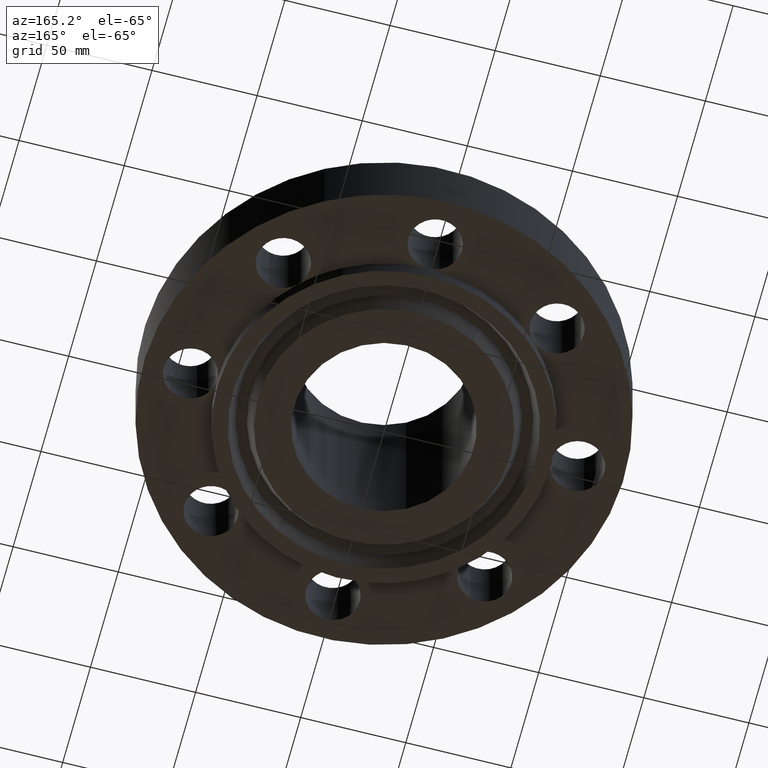
[diagram: clean part render]
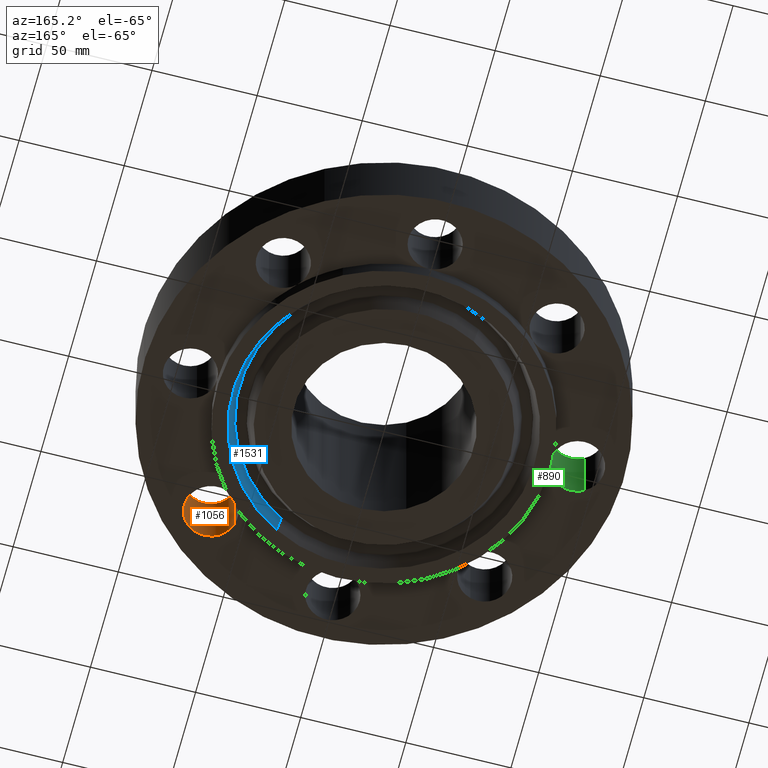
[diagram: same view with three faces highlighted in distinct colors, each labeled with its STEP entity id]
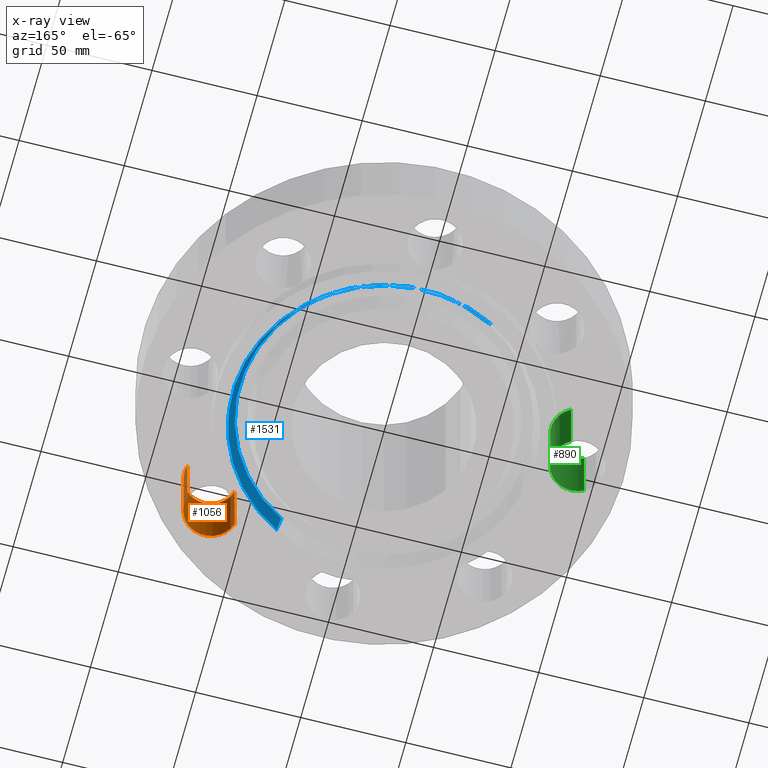
[diagram: x-ray of the same camera — body ghosted, the three highlighted faces saturated]
A machine part, auxiliary view with three faces highlighted in distinct colors.
The next image is the same camera in x-ray (body ghosted, the three faces saturated) — at least one of them is partly hidden behind the body in this view.
Their STEP definitions:

[orange] entity #1056 — the highlighted cylindrical surface (edge-blend (fillet) strip) has radius 12.7 mm, axis along (-0, 0, -1).
#347=AXIS2_PLACEMENT_3D('Circle Axis2P3D',#345,#346,$) ;
#498=AXIS2_PLACEMENT_3D('Circle Axis2P3D',#496,#497,$) ;
#1048=AXIS2_PLACEMENT_3D('Cylinder Axis2P3D',#1045,#1046,#1047) ;
#342=CARTESIAN_POINT('Vertex',(2.08348726685,-2.70403184736,0.)) ;
#345=CARTESIAN_POINT('Axis2P3D Location',(2.56326208185,-2.56326208182,0.)) ;
#349=CARTESIAN_POINT('Vertex',(3.04303689684,-2.42249231623,0.)) ;
#491=CARTESIAN_POINT('Vertex',(2.08348726682,-2.70403184738,1.37999999999)) ;
#493=CARTESIAN_POINT('Vertex',(3.0430368968,-2.42249231624,1.37999999999)) ;
#496=CARTESIAN_POINT('Axis2P3D Location',(2.56326208183,-2.56326208177,1.38000000001)) ;
#1020=CARTESIAN_POINT('Line Origine',(2.08348726682,-2.70403184738,0.690000000005)) ;
#1025=CARTESIAN_POINT('Line Origine',(3.0430368968,-2.42249231624,0.690000000005)) ;
#1045=CARTESIAN_POINT('Axis2P3D Location',(2.56326208181,-2.56326208181,1.37606299213)) ;
#346=DIRECTION('Axis2P3D Direction',(0.,0.,-0.0393700787402)) ;
#497=DIRECTION('Axis2P3D Direction',(0.,0.,-0.0393700787402)) ;
#1021=DIRECTION('Vector Direction',(0.,0.,-0.0393700787402)) ;
#1026=DIRECTION('Vector Direction',(0.,0.,-0.0393700787402)) ;
#1046=DIRECTION('Axis2P3D Direction',(-0.,0.,-0.0393700787402)) ;
#1047=DIRECTION('Axis2P3D XDirection',(0.0377775444876,0.0110842335096,0.)) ;
#1022=VECTOR('Line Direction',#1021,0.0393700787402) ;
#1027=VECTOR('Line Direction',#1026,0.0393700787402) ;
#1051=ORIENTED_EDGE('',*,*,#1029,.F.) ;
#1052=ORIENTED_EDGE('',*,*,#351,.T.) ;
#1053=ORIENTED_EDGE('',*,*,#1024,.T.) ;
#1054=ORIENTED_EDGE('',*,*,#500,.F.) ;
#1056=ADVANCED_FACE('PartBody',(#1055),#1049,.F.) ;
#348=CIRCLE('generated circle',#347,0.5) ;
#499=CIRCLE('generated circle',#498,0.5) ;
#1049=CYLINDRICAL_SURFACE('generated cylinder',#1048,0.500000000002) ;
#351=EDGE_CURVE('',#350,#343,#348,.T.) ;
#500=EDGE_CURVE('',#494,#492,#499,.T.) ;
#1024=EDGE_CURVE('',#343,#492,#1023,.F.) ;
#1029=EDGE_CURVE('',#350,#494,#1028,.F.) ;
#1050=EDGE_LOOP('',(#1051,#1052,#1053,#1054)) ;
#1055=FACE_OUTER_BOUND('',#1050,.T.) ;
#1023=LINE('Line',#1020,#1022) ;
#1028=LINE('Line',#1025,#1027) ;
#343=VERTEX_POINT('',#342) ;
#350=VERTEX_POINT('',#349) ;
#492=VERTEX_POINT('',#491) ;
#494=VERTEX_POINT('',#493) ;

[blue] entity #1531 — the highlighted conical surface has half-angle 23 deg.
#1221=AXIS2_PLACEMENT_3D('Circle Axis2P3D',#1219,#1220,$) ;
#1518=AXIS2_PLACEMENT_3D('Cone Axis2P3D',#1515,#1516,#1517) ;
#1522=AXIS2_PLACEMENT_3D('Circle Axis2P3D',#1520,#1521,$) ;
#1214=CARTESIAN_POINT('Vertex',(1.35605513595,-2.48224227628,-0.313000000001)) ;
#1216=CARTESIAN_POINT('Vertex',(-1.35605513595,2.48224227633,-0.313000000001)) ;
#1219=CARTESIAN_POINT('Axis2P3D Location',(1.39870617276E-016,2.41978965299E-011,-0.313000000001)) ;
#1482=CARTESIAN_POINT('Line Origine',(-1.32612857415,2.4274620724,-0.165943667508)) ;
#1486=CARTESIAN_POINT('Vertex',(-1.29620201235,2.37268186847,-0.0188873350156)) ;
#1493=CARTESIAN_POINT('Vertex',(1.29620201235,-2.37268186847,-0.0188873350179)) ;
#1496=CARTESIAN_POINT('Line Origine',(1.32612857415,-2.4274620724,-0.165943667508)) ;
#1515=CARTESIAN_POINT('Axis2P3D Location',(0.,0.,-0.0188873350169)) ;
#1520=CARTESIAN_POINT('Axis2P3D Location',(0.,0.,-0.0188873350169)) ;
#1220=DIRECTION('Axis2P3D Direction',(0.,0.,-0.0393700787402)) ;
#1483=DIRECTION('Vector Direction',(-0.00737505833566,0.0134999537303,-0.0362403485611)) ;
#1497=DIRECTION('Vector Direction',(0.00737505833566,-0.0134999537303,-0.0362403485611)) ;
#1516=DIRECTION('Axis2P3D Direction',(-0.,-0.,-0.0393700787402)) ;
#1517=DIRECTION('Axis2P3D XDirection',(-0.0188750212049,0.0345504945626,0.)) ;
#1521=DIRECTION('Axis2P3D Direction',(-0.,0.,-0.0393700787402)) ;
#1484=VECTOR('Line Direction',#1483,0.0393700787402) ;
#1498=VECTOR('Line Direction',#1497,0.0393700787402) ;
#1526=ORIENTED_EDGE('',*,*,#1223,.T.) ;
#1527=ORIENTED_EDGE('',*,*,#1500,.T.) ;
#1528=ORIENTED_EDGE('',*,*,#1524,.T.) ;
#1529=ORIENTED_EDGE('',*,*,#1488,.F.) ;
#1531=ADVANCED_FACE('PartBody',(#1530),#1519,.F.) ;
#1222=CIRCLE('generated circle',#1221,2.8285) ;
#1523=CIRCLE('generated circle',#1522,2.7036565806) ;
#1519=CONICAL_SURFACE('Cone',#1518,2.7036565806,0.401425727959) ;
#1223=EDGE_CURVE('',#1217,#1215,#1222,.T.) ;
#1488=EDGE_CURVE('',#1217,#1487,#1485,.F.) ;
#1500=EDGE_CURVE('',#1215,#1494,#1499,.F.) ;
#1524=EDGE_CURVE('',#1494,#1487,#1523,.F.) ;
#1525=EDGE_LOOP('',(#1526,#1527,#1528,#1529)) ;
#1530=FACE_OUTER_BOUND('',#1525,.T.) ;
#1485=LINE('Line',#1482,#1484) ;
#1499=LINE('Line',#1496,#1498) ;
#1215=VERTEX_POINT('',#1214) ;
#1217=VERTEX_POINT('',#1216) ;
#1487=VERTEX_POINT('',#1486) ;
#1494=VERTEX_POINT('',#1493) ;

[green] entity #890 — the highlighted cylindrical surface (edge-blend (fillet) strip) has radius 12.7 mm, axis along (0, 0, -1).
#255=AXIS2_PLACEMENT_3D('Circle Axis2P3D',#253,#254,$) ;
#269=AXIS2_PLACEMENT_3D('Circle Axis2P3D',#267,#268,$) ;
#543=AXIS2_PLACEMENT_3D('Circle Axis2P3D',#541,#542,$) ;
#871=AXIS2_PLACEMENT_3D('Cylinder Axis2P3D',#868,#869,#870) ;
#250=CARTESIAN_POINT('Vertex',(-3.12500000001,-4.75560098737E-015,2.61916123086E-011)) ;
#253=CARTESIAN_POINT('Axis2P3D Location',(-3.62499999993,2.44947019798E-011,0.)) ;
#257=CARTESIAN_POINT('Vertex',(-3.38528723067,0.438791280916,0.)) ;
#264=CARTESIAN_POINT('Vertex',(-3.86471276934,-0.438791280969,0.)) ;
#267=CARTESIAN_POINT('Axis2P3D Location',(-3.62500000006,6.00537292685E-011,0.)) ;
#541=CARTESIAN_POINT('Axis2P3D Location',(-3.62500000001,2.7333516028E-011,1.38000000001)) ;
#545=CARTESIAN_POINT('Vertex',(-3.38528723071,0.438791280948,1.37999999999)) ;
#547=CARTESIAN_POINT('Vertex',(-3.86471276931,-0.438791280947,1.37999999999)) ;
#868=CARTESIAN_POINT('Axis2P3D Location',(-3.62500000001,-1.22538416614E-015,1.37606299213)) ;
#873=CARTESIAN_POINT('Line Origine',(-3.38528723071,0.438791280947,0.690000000005)) ;
#878=CARTESIAN_POINT('Line Origine',(-3.86471276931,-0.438791280947,0.690000000005)) ;
#254=DIRECTION('Axis2P3D Direction',(0.,0.,-0.0393700787402)) ;
#268=DIRECTION('Axis2P3D Direction',(0.,0.,-0.0393700787402)) ;
#542=DIRECTION('Axis2P3D Direction',(0.,0.,-0.0393700787402)) ;
#869=DIRECTION('Axis2P3D Direction',(0.,0.,-0.0393700787402)) ;
#870=DIRECTION('Axis2P3D XDirection',(0.0188750212047,0.0345504945627,0.)) ;
#874=DIRECTION('Vector Direction',(0.,0.,-0.0393700787402)) ;
#879=DIRECTION('Vector Direction',(0.,0.,-0.0393700787402)) ;
#875=VECTOR('Line Direction',#874,0.0393700787402) ;
#880=VECTOR('Line Direction',#879,0.0393700787402) ;
#884=ORIENTED_EDGE('',*,*,#877,.F.) ;
#885=ORIENTED_EDGE('',*,*,#259,.T.) ;
#886=ORIENTED_EDGE('',*,*,#271,.T.) ;
#887=ORIENTED_EDGE('',*,*,#882,.T.) ;
#888=ORIENTED_EDGE('',*,*,#549,.F.) ;
#890=ADVANCED_FACE('PartBody',(#889),#872,.F.) ;
#256=CIRCLE('generated circle',#255,0.499999999932) ;
#270=CIRCLE('generated circle',#269,0.500000000063) ;
#544=CIRCLE('generated circle',#543,0.500000000013) ;
#872=CYLINDRICAL_SURFACE('generated cylinder',#871,0.500000000002) ;
#259=EDGE_CURVE('',#258,#251,#256,.T.) ;
#271=EDGE_CURVE('',#251,#265,#270,.T.) ;
#549=EDGE_CURVE('',#546,#548,#544,.T.) ;
#877=EDGE_CURVE('',#258,#546,#876,.F.) ;
#882=EDGE_CURVE('',#265,#548,#881,.F.) ;
#883=EDGE_LOOP('',(#884,#885,#886,#887,#888)) ;
#889=FACE_OUTER_BOUND('',#883,.T.) ;
#876=LINE('Line',#873,#875) ;
#881=LINE('Line',#878,#880) ;
#251=VERTEX_POINT('',#250) ;
#258=VERTEX_POINT('',#257) ;
#265=VERTEX_POINT('',#264) ;
#546=VERTEX_POINT('',#545) ;
#548=VERTEX_POINT('',#547) ;